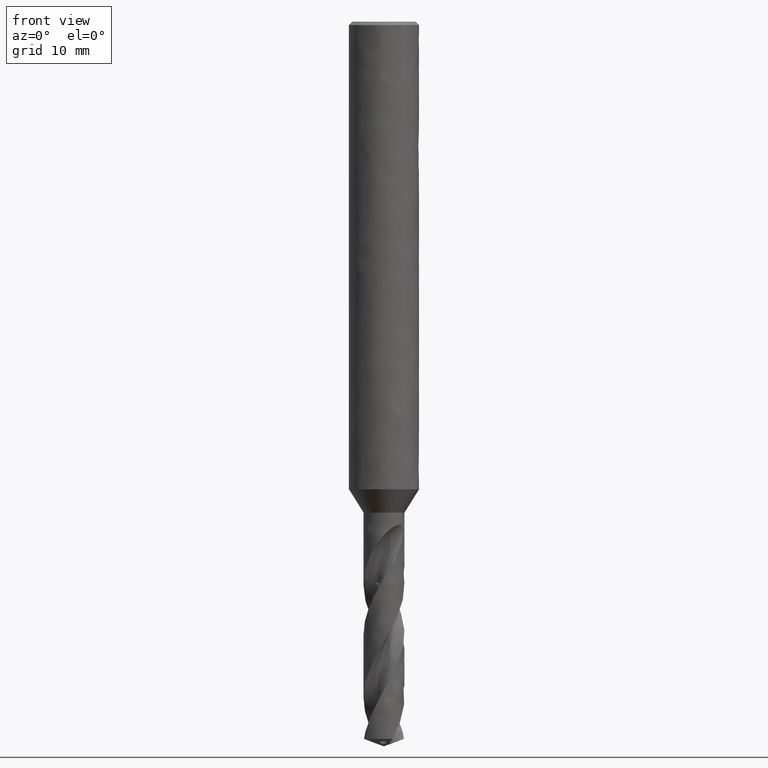
[diagram: clean part render]
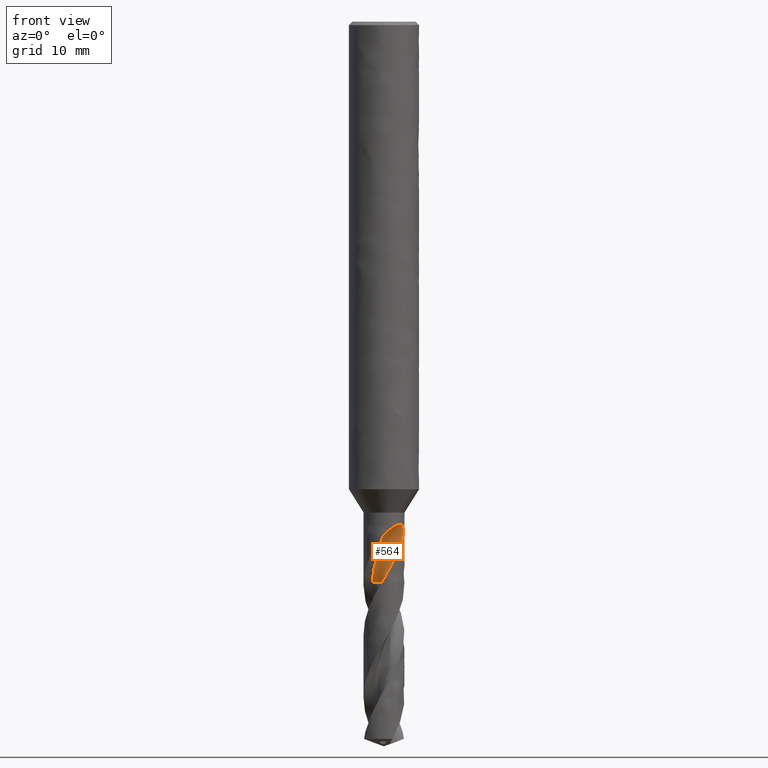
[diagram: same view with one face highlighted and labeled with its STEP entity id]
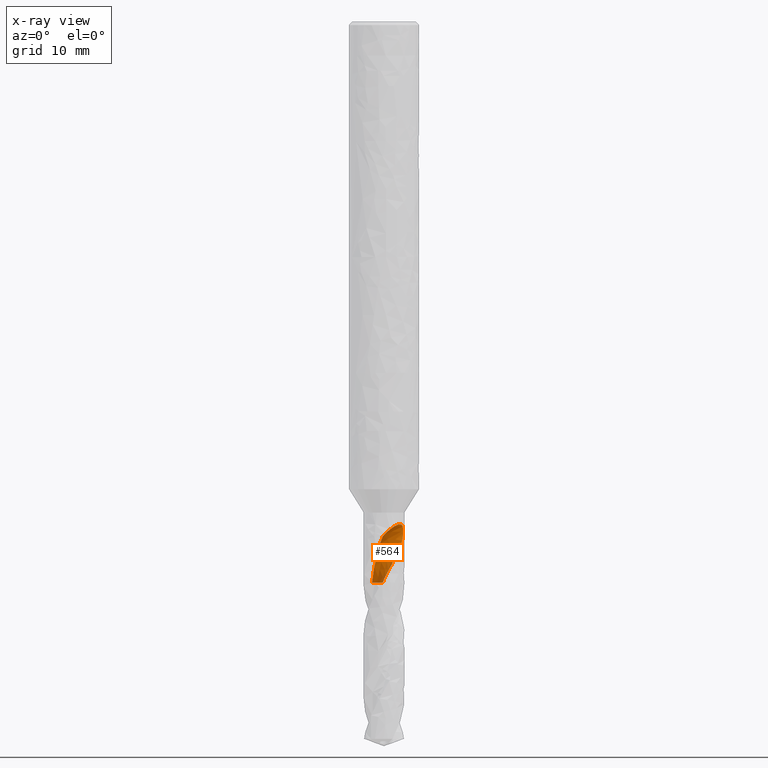
[diagram: x-ray of the same camera — body ghosted, the highlighted face saturated]
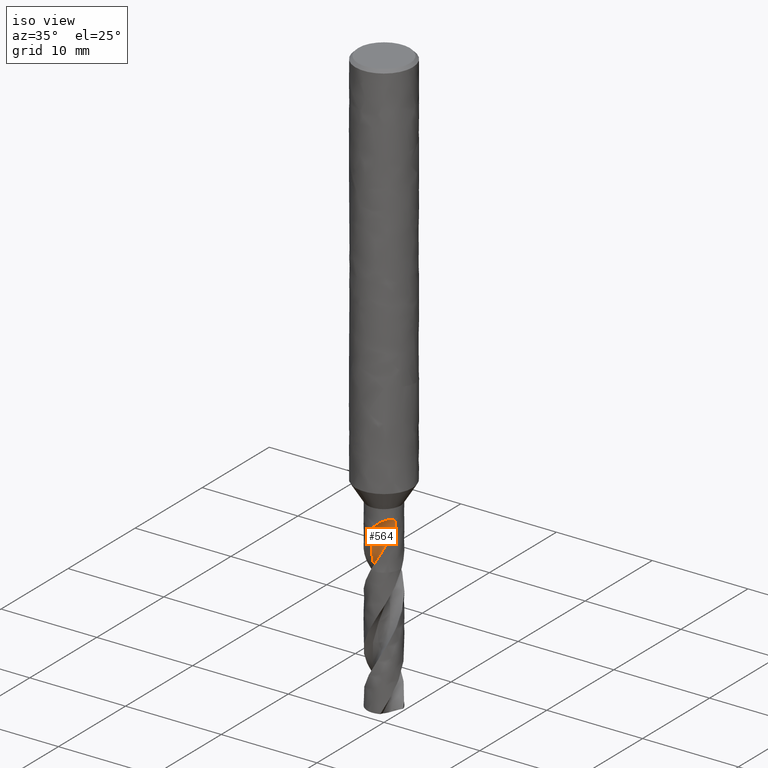
[diagram: same view with one face highlighted and labeled with its STEP entity id]
A machine part, front view. The second image highlights one B-rep face of the part: STEP entity #564.
The next image is the same camera in x-ray: the body ghosted, the highlighted face saturated — about 0% of this face is hidden behind the body in this view.
A second angle (iso view) of the same face is appended — the face is thin or edge-on in the first view.
In plain terms, the highlighted face is a freeform B-spline surface patch.
Its self-contained STEP definition (entity closure, byte-faithful):
#422 = VERTEX_POINT('', #423);
#423 = CARTESIAN_POINT('', (-1.02463457413671, -0.229073927683656, -48.));
#429 = EDGE_CURVE('', #422, #430, #432, .T.);
#430 = VERTEX_POINT('', #431);
#431 = CARTESIAN_POINT('', (-0.0982316815535359, -1.74724083535704, -44.0364410090639));
#432 = (
   BOUNDED_CURVE ()
   B_SPLINE_CURVE (3, (#433, #434, #435, #436, #437, #438, #439, #440, #441, #442, #443, #444, #445, #446, #447, #448), .UNSPECIFIED., .F., .U.)
   B_SPLINE_CURVE_WITH_KNOTS ((4, 1, 1, 1, 1, 1, 1, 1, 1, 1, 1, 1, 1, 4), (14.05, 14.206779661017, 14.5296610169492, 14.8525423728814, 15.1754237288136, 15.4983050847458, 15.821186440678, 16.1440677966102, 16.4669491525424, 16.7898305084746, 17.1127118644068, 17.435593220339, 17.7584745762712, 18.0135589909361), .UNSPECIFIED.)
   CURVE ()
   GEOMETRIC_REPRESENTATION_ITEM ()
   RATIONAL_B_SPLINE_CURVE ((1., 1., 1., 1., 1., 1., 1., 1., 1., 1., 1., 1., 1., 1., 1., 1.))
   REPRESENTATION_ITEM ('')
);
#433 = CARTESIAN_POINT('', (-1.02463457413671, -0.229073927683656, -48.));
#434 = CARTESIAN_POINT('', (-1.02118011137173, -0.246667530193269, -47.9477401129944));
#435 = CARTESIAN_POINT('', (-1.00922730980289, -0.300254623871898, -47.7878531073446));
#436 = CARTESIAN_POINT('', (-0.982076956709477, -0.388266202687779, -47.5203389830508));
#437 = CARTESIAN_POINT('', (-0.939420484391707, -0.491482865861432, -47.1974576271186));
#438 = CARTESIAN_POINT('', (-0.880946828227628, -0.586976967924989, -46.8745762711864));
#439 = CARTESIAN_POINT('', (-0.807347412045549, -0.670961511618419, -46.5516949152542));
#440 = CARTESIAN_POINT('', (-0.720580019576598, -0.740983774738041, -46.228813559322));
#441 = CARTESIAN_POINT('', (-0.625835455340799, -0.795190504168269, -45.9059322033898));
#442 = CARTESIAN_POINT('', (-0.555132814584524, -0.879462890302774, -45.5830508474576));
#443 = CARTESIAN_POINT('', (-0.490520928842752, -0.993328379503738, -45.2601694915254));
#444 = CARTESIAN_POINT('', (-0.422478962493623, -1.14241824249025, -44.9372881355932));
#445 = CARTESIAN_POINT('', (-0.338106807925175, -1.32753285038266, -44.614406779661));
#446 = CARTESIAN_POINT('', (-0.232797666395472, -1.53200409726768, -44.3141244041512));
#447 = CARTESIAN_POINT('', (-0.143103135513535, -1.67951902631852, -44.1214691472855));
#448 = CARTESIAN_POINT('', (-0.0982316815535369, -1.74724083535704, -44.0364410090639));
#564 = ADVANCED_FACE('', (#565), #840, .T.);
#565 = FACE_OUTER_BOUND('', #566, .T.);
#566 = EDGE_LOOP('', (#567, #624, #663, #674, #779, #787, #839));
#567 = ORIENTED_EDGE('', *, *, #568, .T.);
#568 = EDGE_CURVE('', #422, #569, #571, .T.);
#569 = VERTEX_POINT('', #570);
#570 = CARTESIAN_POINT('', (-0.209315928972216, -1.73743685676138, -48.));
#571 = B_SPLINE_CURVE_WITH_KNOTS('', 3, (#572, #573, #574, #575, #576, #577, #578, #579, #580, #581, #582, #583, #584, #585, #586, #587, #588, #589, #590, #591, #592, #593, #594, #595, #596, #597, #598, #599, #600, #601, #602, #603, #604, #605, #606, #607, #608, #609, #610, #611, #612, #613, #614, #615, #616, #617, #618, #619, #620, #621, #622, #623), .UNSPECIFIED., .F., .U., (4, 3, 3, 3, 3, 3, 3, 3, 3, 3, 3, 3, 3, 3, 3, 3, 3, 4), (0., 0.13238223961538, 0.264489129459112, 0.396329541998018, 0.527909895141712, 0.659234382537287, 0.790305122709238, 0.921122238344768, 1.00833954413342, 1.04734196641181, 1.17964447026306, 1.31167442705309, 1.44343997904716, 1.57494688894051, 1.70619874545669, 1.83719709162444, 1.96794148542349, 2.00282853897093), .UNSPECIFIED.);
#572 = CARTESIAN_POINT('', (-1.02463457413671, -0.229073927683655, -48.));
#573 = CARTESIAN_POINT('', (-0.980840436519577, -0.234487069705403, -48.));
#574 = CARTESIAN_POINT('', (-0.937301769085219, -0.24267663320288, -48.));
#575 = CARTESIAN_POINT('', (-0.894533881379576, -0.253545689158824, -48.));
#576 = CARTESIAN_POINT('', (-0.851854949172402, -0.264392137912441, -48.));
#577 = CARTESIAN_POINT('', (-0.809775730986182, -0.277949557964906, -48.));
#578 = CARTESIAN_POINT('', (-0.76879219925814, -0.29405815293796, -48.));
#579 = CARTESIAN_POINT('', (-0.727891336807151, -0.310134254715708, -48.));
#580 = CARTESIAN_POINT('', (-0.687921521844684, -0.328814178372795, -48.));
#581 = CARTESIAN_POINT('', (-0.649351970942264, -0.349878635184896, -48.));
#582 = CARTESIAN_POINT('', (-0.61085849970228, -0.37090154168785, -48.));
#583 = CARTESIAN_POINT('', (-0.573609571840415, -0.394381566705054, -48.));
#584 = CARTESIAN_POINT('', (-0.538040744348666, -0.420044154976654, -48.));
#585 = CARTESIAN_POINT('', (-0.502541082537343, -0.445656840833571, -48.));
#586 = CARTESIAN_POINT('', (-0.468577006149005, -0.473543115206731, -48.));
#587 = CARTESIAN_POINT('', (-0.43654412338344, -0.5033781631747, -48.));
#588 = CARTESIAN_POINT('', (-0.404573135053769, -0.533155563397463, -48.));
#589 = CARTESIAN_POINT('', (-0.374402086367705, -0.564989461779883, -48.));
#590 = CARTESIAN_POINT('', (-0.346381052114439, -0.598510489481608, -48.));
#591 = CARTESIAN_POINT('', (-0.31841423912988, -0.631966653315929, -48.));
#592 = CARTESIAN_POINT('', (-0.292481245161039, -0.667232418184141, -48.));
#593 = CARTESIAN_POINT('', (-0.268881810821114, -0.703900172763031, -48.));
#594 = CARTESIAN_POINT('', (-0.253147791069455, -0.72834699494034, -48.));
#595 = CARTESIAN_POINT('', (-0.238415169574571, -0.753467970903061, -48.));
#596 = CARTESIAN_POINT('', (-0.224759759827934, -0.779133829095726, -48.));
#597 = CARTESIAN_POINT('', (-0.218653241717715, -0.790611260441673, -48.));
#598 = CARTESIAN_POINT('', (-0.212758457184175, -0.802203872072275, -48.));
#599 = CARTESIAN_POINT('', (-0.207081478613279, -0.813899722107092, -48.));
#600 = CARTESIAN_POINT('', (-0.187824252129282, -0.85357393088392, -48.));
#601 = CARTESIAN_POINT('', (-0.171033120335392, -0.894541725115934, -48.));
#602 = CARTESIAN_POINT('', (-0.156906578998959, -0.936318805480571, -48.));
#603 = CARTESIAN_POINT('', (-0.142809138754452, -0.97800982382712, -48.));
#604 = CARTESIAN_POINT('', (-0.131309900642762, -1.02067055713143, -48.));
#605 = CARTESIAN_POINT('', (-0.122544244648893, -1.06379876260322, -48.));
#606 = CARTESIAN_POINT('', (-0.113796142864241, -1.10684059900661, -48.));
#607 = CARTESIAN_POINT('', (-0.107736416082395, -1.1505164296454, -48.));
#608 = CARTESIAN_POINT('', (-0.10443612056557, -1.19431411240731, -48.));
#609 = CARTESIAN_POINT('', (-0.101142303186259, -1.23802582486435, -48.));
#610 = CARTESIAN_POINT('', (-0.100584216260085, -1.2820292583047, -48.));
#611 = CARTESIAN_POINT('', (-0.102768378314935, -1.32581044690178, -48.));
#612 = CARTESIAN_POINT('', (-0.104948304258475, -1.36950672330667, -48.));
#613 = CARTESIAN_POINT('', (-0.109868273691704, -1.41315124799675, -48.));
#614 = CARTESIAN_POINT('', (-0.117471042774582, -1.45623621696557, -48.));
#615 = CARTESIAN_POINT('', (-0.125059127260301, -1.49923796817438, -48.));
#616 = CARTESIAN_POINT('', (-0.135348961229887, -1.54184862088008, -48.));
#617 = CARTESIAN_POINT('', (-0.14822128317172, -1.58357430794468, -48.));
#618 = CARTESIAN_POINT('', (-0.161068650930974, -1.62521910591888, -48.));
#619 = CARTESIAN_POINT('', (-0.176537954614612, -1.66614279993521, -48.));
#620 = CARTESIAN_POINT('', (-0.19445059395523, -1.70587290701418, -48.));
#621 = CARTESIAN_POINT('', (-0.199230295705293, -1.71647425161363, -48.));
#622 = CARTESIAN_POINT('', (-0.204186802137414, -1.72699844392431, -48.));
#623 = CARTESIAN_POINT('', (-0.209315961483917, -1.73743684078596, -48.));
#624 = ORIENTED_EDGE('', *, *, #625, .F.);
#625 = EDGE_CURVE('', #626, #569, #628, .T.);
#626 = VERTEX_POINT('', #627);
#627 = CARTESIAN_POINT('', (0.670503920200048, -1.61645429659992, -46.4198884757351));
#628 = B_SPLINE_CURVE_WITH_KNOTS('', 3, (#629, #630, #631, #632, #633, #634, #635, #636, #637, #638, #639, #640, #641, #642, #643, #644, #645, #646, #647, #648, #649, #650, #651, #652, #653, #654, #655, #656, #657, #658, #659, #660, #661, #662), .UNSPECIFIED., .F., .U., (4, 3, 3, 3, 3, 3, 3, 3, 3, 3, 3, 4), (0., 0.196912370684653, 0.492059195325573, 0.787148468239618, 0.918409681121345, 1.11521293322306, 1.24646837218767, 1.37771199716514, 1.41662988129931, 1.61395339891345, 1.81125986598311, 1.81740518934498), .UNSPECIFIED.);
#629 = CARTESIAN_POINT('', (0.670503920200047, -1.61645429659992, -46.4198884757351));
#630 = CARTESIAN_POINT('', (0.641567049603881, -1.62845728685697, -46.477567427638));
#631 = CARTESIAN_POINT('', (0.61213232277094, -1.63975511168635, -46.5351500155752));
#632 = CARTESIAN_POINT('', (0.582269470543588, -1.65029156929112, -46.5926432227011));
#633 = CARTESIAN_POINT('', (0.537508818996007, -1.66608439121591, -46.6788182936864));
#634 = CARTESIAN_POINT('', (0.491763708956138, -1.68017495230515, -46.764817784929));
#635 = CARTESIAN_POINT('', (0.445187825674481, -1.69242660102919, -46.8506062236063));
#636 = CARTESIAN_POINT('', (0.398621024389613, -1.70467586076076, -46.9363779340916));
#637 = CARTESIAN_POINT('', (0.351192379158234, -1.71509257486522, -47.0219681604022));
#638 = CARTESIAN_POINT('', (0.303158585739479, -1.72354137516116, -47.1073887090354));
#639 = CARTESIAN_POINT('', (0.281792258454202, -1.72729955912796, -47.1453853624139));
#640 = CARTESIAN_POINT('', (0.260303767323908, -1.73066945308907, -47.1833539374585));
#641 = CARTESIAN_POINT('', (0.238717380773135, -1.73364183501576, -47.2212957668518));
#642 = CARTESIAN_POINT('', (0.206352366150387, -1.73809840232013, -47.2781829100633));
#643 = CARTESIAN_POINT('', (0.173757758337975, -1.74166164744573, -47.3350169121262));
#644 = CARTESIAN_POINT('', (0.141046044290308, -1.74430674291825, -47.3918187559381));
#645 = CARTESIAN_POINT('', (0.119229380486439, -1.74607085587696, -47.4297020269913));
#646 = CARTESIAN_POINT('', (0.0973593200607882, -1.74742687072466, -47.4675757770086));
#647 = CARTESIAN_POINT('', (0.0754820796046046, -1.74837137235158, -47.5054534142957));
#648 = CARTESIAN_POINT('', (0.0536068082663439, -1.74931578896617, -47.5433276423076));
#649 = CARTESIAN_POINT('', (0.0317271915754814, -1.74984903786735, -47.5812118337766));
#650 = CARTESIAN_POINT('', (0.0098581533369631, -1.74997223315479, -47.6191012327663));
#651 = CARTESIAN_POINT('', (0.00337329209941045, -1.7500087644524, -47.6303366374578));
#652 = CARTESIAN_POINT('', (-0.0031108152520683, -1.75000924399543, -47.6415726522982));
#653 = CARTESIAN_POINT('', (-0.00959386837336357, -1.74997370199944, -47.6528091035787));
#654 = CARTESIAN_POINT('', (-0.0424645877157391, -1.7497934950887, -47.7097807540551));
#655 = CARTESIAN_POINT('', (-0.0753111378252613, -1.74868738550184, -47.7667709256039));
#656 = CARTESIAN_POINT('', (-0.108101702283763, -1.74665795791944, -47.8237529045868));
#657 = CARTESIAN_POINT('', (-0.140889433339615, -1.74462870569803, -47.8807299598091));
#658 = CARTESIAN_POINT('', (-0.173632282435535, -1.74167501371979, -47.9377074348598));
#659 = CARTESIAN_POINT('', (-0.206266905327609, -1.73780147421003, -47.9946768571364));
#660 = CARTESIAN_POINT('', (-0.207283345961527, -1.73768082863162, -47.9964512314224));
#661 = CARTESIAN_POINT('', (-0.208299687821011, -1.73755928937422, -47.9982256124543));
#662 = CARTESIAN_POINT('', (-0.209315928972216, -1.73743685676138, -48.));
#663 = ORIENTED_EDGE('', *, *, #664, .T.);
#664 = EDGE_CURVE('', #626, #665, #667, .T.);
#665 = VERTEX_POINT('', #666);
#666 = CARTESIAN_POINT('', (1.06988006260758, -1.38486701586643, -45.6098181163307));
#667 = (
   BOUNDED_CURVE ()
   B_SPLINE_CURVE (3, (#668, #669, #670, #671, #672, #673), .UNSPECIFIED., .F., .U.)
   B_SPLINE_CURVE_WITH_KNOTS ((4, 1, 1, 4), (15.6301115242649, 15.821186440678, 16.1440677966102, 16.4401818836693), .UNSPECIFIED.)
   CURVE ()
   GEOMETRIC_REPRESENTATION_ITEM ()
   RATIONAL_B_SPLINE_CURVE ((1., 1., 1., 1., 1., 1.))
   REPRESENTATION_ITEM ('')
);
#668 = CARTESIAN_POINT('', (0.670503920200048, -1.61645429659992, -46.4198884757351));
#669 = CARTESIAN_POINT('', (0.70221884694792, -1.59780081020011, -46.3561968369307));
#670 = CARTESIAN_POINT('', (0.784847952209712, -1.54357346306909, -46.1848780794823));
#671 = CARTESIAN_POINT('', (0.90141755642172, -1.44374537222821, -45.9148546263475));
#672 = CARTESIAN_POINT('', (1.01132593709417, -1.40119286587628, -45.7085228120171));
#673 = CARTESIAN_POINT('', (1.06988006260758, -1.38486701586643, -45.6098181163307));
#674 = ORIENTED_EDGE('', *, *, #675, .F.);
#675 = EDGE_CURVE('', #676, #665, #678, .T.);
#676 = VERTEX_POINT('', #677);
#677 = CARTESIAN_POINT('', (1.36812524291428, -1.09120727623158, -43.));
#678 = B_SPLINE_CURVE_WITH_KNOTS('', 3, (#679, #680, #681, #682, #683, #684, #685, #686, #687, #688, #689, #690, #691, #692, #693, #694, #695, #696, #697, #698, #699, #700, #701, #702, #703, #704, #705, #706, #707, #708, #709, #710, #711, #712, #713, #714, #715, #716, #717, #718, #719, #720, #721, #722, #723, #724, #725, #726, #727, #728, #729, #730, #731, #732, #733, #734, #735, #736, #737, #738, #739, #740, #741, #742, #743, #744, #745, #746, #747, #748, #749, #750, #751, #752, #753, #754, #755, #756, #757, #758, #759, #760, #761, #762, #763, #764, #765, #766, #767, #768, #769, #770, #771, #772, #773, #774, #775, #776, #777, #778), .UNSPECIFIED., .F., .U., (4, 3, 3, 3, 3, 3, 3, 3, 3, 3, 3, 3, 3, 3, 3, 3, 3, 3, 3, 3, 3, 3, 3, 3, 3, 3, 3, 3, 3, 3, 3, 3, 3, 4), (0., 0.0876064604284162, 0.174954474055979, 0.233061554713989, 0.291071857956427, 0.348998773800866, 0.406869704771239, 0.464722692013906, 0.522597972911667, 0.58052854123835, 0.6385346334677, 0.696623652282654, 0.754793499270582, 0.793650941808806, 0.881083362469084, 0.968658215114641, 1.05634098697163, 1.18816145221221, 1.32013795023672, 1.45219513306295, 1.58428299878999, 1.71636487271589, 1.84841881080709, 1.98042811375123, 2.11237955534745, 2.2442673283256, 2.37608666631463, 2.50783673724395, 2.63952265806685, 2.77114618353116, 2.90270633107335, 3.03420591419199, 3.16565618698797, 3.18550606596538), .UNSPECIFIED.);
#679 = CARTESIAN_POINT('', (1.36812524291503, -1.09120727623063, -43.));
#680 = CARTESIAN_POINT('', (1.3863341507876, -1.06837745549077, -43.0000269577031));
#681 = CARTESIAN_POINT('', (1.404010280117, -1.0450337117202, -43.0016506137325));
#682 = CARTESIAN_POINT('', (1.42093114160208, -1.02149629995678, -43.0051777176047));
#683 = CARTESIAN_POINT('', (1.43780208505034, -0.998028325638281, -43.0086944162089));
#684 = CARTESIAN_POINT('', (1.45400448005079, -0.974248773254522, -43.0141286427403));
#685 = CARTESIAN_POINT('', (1.46927015733305, -0.950655145029208, -43.021747141595));
#686 = CARTESIAN_POINT('', (1.4794254419732, -0.934959804043561, -43.0268152445668));
#687 = CARTESIAN_POINT('', (1.48920161623475, -0.919295187944383, -43.0328663552207));
#688 = CARTESIAN_POINT('', (1.49851413549821, -0.903855843435251, -43.0399418642912));
#689 = CARTESIAN_POINT('', (1.50781114474917, -0.888442213173726, -43.0470055890925));
#690 = CARTESIAN_POINT('', (1.5166773828833, -0.873201001334438, -43.0551163445982));
#691 = CARTESIAN_POINT('', (1.52503401379854, -0.858353806281251, -43.0642617317261));
#692 = CARTESIAN_POINT('', (1.53337863240443, -0.84352795345339, -43.0733939727404));
#693 = CARTESIAN_POINT('', (1.54124679019073, -0.829039208698176, -43.0835942549671));
#694 = CARTESIAN_POINT('', (1.54857711546831, -0.815112824980589, -43.094781683875));
#695 = CARTESIAN_POINT('', (1.55590035617508, -0.801199900754626, -43.1059583004206));
#696 = CARTESIAN_POINT('', (1.56271666849305, -0.787792721946847, -43.1181658146862));
#697 = CARTESIAN_POINT('', (1.56899220606779, -0.775089322141983, -43.1312561673905));
#698 = CARTESIAN_POINT('', (1.57526579782041, -0.762389861211839, -43.1443424612396));
#699 = CARTESIAN_POINT('', (1.58102494242089, -0.750342700622784, -43.1583630327344));
#700 = CARTESIAN_POINT('', (1.58626665650486, -0.73909275091892, -43.173122721526));
#701 = CARTESIAN_POINT('', (1.59151039048393, -0.727838466045681, -43.1878880979652));
#702 = CARTESIAN_POINT('', (1.59625704608792, -0.717338885973317, -43.2034474152414));
#703 = CARTESIAN_POINT('', (1.60052967737482, -0.707675597885403, -43.2195885893208));
#704 = CARTESIAN_POINT('', (1.60480639024533, -0.698003078596447, -43.2357451828331));
#705 = CARTESIAN_POINT('', (1.60862336037621, -0.689134999639388, -43.2525371820438));
#706 = CARTESIAN_POINT('', (1.61201994979088, -0.681095941462145, -43.2697627485153));
#707 = CARTESIAN_POINT('', (1.61542096732866, -0.673046402789632, -43.2870107719046));
#708 = CARTESIAN_POINT('', (1.61841076246628, -0.665804115057992, -43.3047410077672));
#709 = CARTESIAN_POINT('', (1.62103510471231, -0.659352098116285, -43.3227782084682));
#710 = CARTESIAN_POINT('', (1.6236631987667, -0.652890857251458, -43.340841195486));
#711 = CARTESIAN_POINT('', (1.62593124378833, -0.64720623333377, -43.3592529956072));
#712 = CARTESIAN_POINT('', (1.62788424011676, -0.642256102173793, -43.3778704073155));
#713 = CARTESIAN_POINT('', (1.62983995394892, -0.637299083136111, -43.3965137242879));
#714 = CARTESIAN_POINT('', (1.6314835398811, -0.633068717165675, -43.4153973776843));
#715 = CARTESIAN_POINT('', (1.63285527563452, -0.629510642351603, -43.4344086524103));
#716 = CARTESIAN_POINT('', (1.63377159475819, -0.627133849308583, -43.4471081789433));
#717 = CARTESIAN_POINT('', (1.63456730896523, -0.625054731716784, -43.4598757454494));
#718 = CARTESIAN_POINT('', (1.63525284940557, -0.623256061752319, -43.4726843980222));
#719 = CARTESIAN_POINT('', (1.63679537141021, -0.619208907367227, -43.5015049128757));
#720 = CARTESIAN_POINT('', (1.63778463798036, -0.616574217410797, -43.5305822517412));
#721 = CARTESIAN_POINT('', (1.63831611610973, -0.615158762999557, -43.5596871470163));
#722 = CARTESIAN_POINT('', (1.63884846004476, -0.613741002739063, -43.5888394556878));
#723 = CARTESIAN_POINT('', (1.63892230906078, -0.613542565414393, -43.6180804678249));
#724 = CARTESIAN_POINT('', (1.63860542044066, -0.614387724570164, -43.6472581274758));
#725 = CARTESIAN_POINT('', (1.63828814131608, -0.615233925222516, -43.6764717429967));
#726 = CARTESIAN_POINT('', (1.63757845114079, -0.617126972709268, -43.7056665546259));
#727 = CARTESIAN_POINT('', (1.63652260656598, -0.619914315206936, -43.7347417668767));
#728 = CARTESIAN_POINT('', (1.63493527167539, -0.62410474825377, -43.7784528394704));
#729 = CARTESIAN_POINT('', (1.63256408533588, -0.630321414343345, -43.8219770940221));
#730 = CARTESIAN_POINT('', (1.62950060100851, -0.638144020823593, -43.8651066560429));
#731 = CARTESIAN_POINT('', (1.62643349050681, -0.645975886739122, -43.9082872695117));
#732 = CARTESIAN_POINT('', (1.62266547045788, -0.655432542192796, -43.9511493046943));
#733 = CARTESIAN_POINT('', (1.6182416848958, -0.666178541582971, -43.993578826121));
#734 = CARTESIAN_POINT('', (1.61381519481991, -0.676931110618827, -44.0360342871473));
#735 = CARTESIAN_POINT('', (1.60872598957346, -0.688988315905038, -44.0781096464362));
#736 = CARTESIAN_POINT('', (1.6029929522305, -0.702078054848129, -44.1197445926166));
#737 = CARTESIAN_POINT('', (1.59725858284174, -0.715170835134015, -44.1613892124922));
#738 = CARTESIAN_POINT('', (1.59087429730304, -0.729309263479572, -44.2026305734875));
#739 = CARTESIAN_POINT('', (1.58384688407942, -0.744264098147904, -44.2434416827092));
#740 = CARTESIAN_POINT('', (1.57681978963498, -0.759218254431473, -44.2842509406477));
#741 = CARTESIAN_POINT('', (1.56914497236116, -0.774998383029103, -44.3246577909049));
#742 = CARTESIAN_POINT('', (1.56082539904291, -0.791406389728155, -44.3646573458516));
#743 = CARTESIAN_POINT('', (1.55250758534706, -0.807810926069397, -44.4046484407356));
#744 = CARTESIAN_POINT('', (1.5435405496855, -0.824852348845201, -44.4442528028221));
#745 = CARTESIAN_POINT('', (1.53392774909446, -0.842357204847213, -44.483479790833));
#746 = CARTESIAN_POINT('', (1.5243181976967, -0.859856144086474, -44.5226935198499));
#747 = CARTESIAN_POINT('', (1.51405916942343, -0.877825626761955, -44.5615459288459));
#748 = CARTESIAN_POINT('', (1.50316056623925, -0.896107310595856, -44.6000592172125));
#749 = CARTESIAN_POINT('', (1.49226674005075, -0.914380981336397, -44.6385556247174));
#750 = CARTESIAN_POINT('', (1.48073072154359, -0.932971906698418, -44.6767262239139));
#751 = CARTESIAN_POINT('', (1.46856927707271, -0.951737505007602, -44.7146013802915));
#752 = CARTESIAN_POINT('', (1.4564137006875, -0.970494048624415, -44.7524582613185));
#753 = CARTESIAN_POINT('', (1.44362988242142, -0.989430330083765, -44.7900299071547));
#754 = CARTESIAN_POINT('', (1.4302441027383, -1.00841549302967, -44.8273540802465));
#755 = CARTESIAN_POINT('', (1.41686526877627, -1.02739080480143, -44.864658886271));
#756 = CARTESIAN_POINT('', (1.40288197767705, -1.04641926745805, -44.9017246477944));
#757 = CARTESIAN_POINT('', (1.38833301293586, -1.06537854549094, -44.9385970983363));
#758 = CARTESIAN_POINT('', (1.37379169323389, -1.08432786099888, -44.9754501735251));
#759 = CARTESIAN_POINT('', (1.35868264556515, -1.1032116088272, -45.0121172299971));
#760 = CARTESIAN_POINT('', (1.34305265502258, -1.12192226372277, -45.0486451710393));
#761 = CARTESIAN_POINT('', (1.32743027484066, -1.14062380825891, -45.0851553263507));
#762 = CARTESIAN_POINT('', (1.31128472585614, -1.15915559594471, -45.1215325152537));
#763 = CARTESIAN_POINT('', (1.29467670035659, -1.17741761561223, -45.1578294861757));
#764 = CARTESIAN_POINT('', (1.27807654406357, -1.19567098237851, -45.1941092588847));
#765 = CARTESIAN_POINT('', (1.26101170614617, -1.21365760378228, -45.2303143985887));
#766 = CARTESIAN_POINT('', (1.24355892790831, -1.23128436716311, -45.2665037649768));
#767 = CARTESIAN_POINT('', (1.22611455334156, -1.24890264309739, -45.3026757058565));
#768 = CARTESIAN_POINT('', (1.20828064233756, -1.26616346133203, -45.3388377486217));
#769 = CARTESIAN_POINT('', (1.19014354058683, -1.28298805637509, -45.3750468317314));
#770 = CARTESIAN_POINT('', (1.17201478834873, -1.29980490612506, -45.4112392457944));
#771 = CARTESIAN_POINT('', (1.15358053186681, -1.31618842578887, -45.4474840963224));
#772 = CARTESIAN_POINT('', (1.13493513037531, -1.33207441602936, -45.4838342441382));
#773 = CARTESIAN_POINT('', (1.1162967206228, -1.34795444926768, -45.5201707612073));
#774 = CARTESIAN_POINT('', (1.09744458048193, -1.3633397724085, -45.5566183766007));
#775 = CARTESIAN_POINT('', (1.07847924418622, -1.37818087341956, -45.5932239224432));
#776 = CARTESIAN_POINT('', (1.07561535031801, -1.38042197990565, -45.598751607091));
#777 = CARTESIAN_POINT('', (1.07274883844845, -1.38265074091651, -45.6042829564905));
#778 = CARTESIAN_POINT('', (1.06988006260758, -1.38486701586643, -45.6098181163307));
#779 = ORIENTED_EDGE('', *, *, #780, .T.);
#780 = EDGE_CURVE('', #676, #781, #783, .T.);
#781 = VERTEX_POINT('', #782);
#782 = CARTESIAN_POINT('', (1.36720002635966, -1.09236627919491, -43.));
#783 = LINE('', #784, #785);
#784 = CARTESIAN_POINT('', (1.36812524291428, -1.09120727623158, -43.));
#785 = VECTOR('', #786, 0.0014830082744049);
#786 = DIRECTION('', (-0.000925216554617414, -0.00115900296333327, 0.));
#787 = ORIENTED_EDGE('', *, *, #788, .T.);
#788 = EDGE_CURVE('', #781, #430, #789, .T.);
#789 = B_SPLINE_CURVE_WITH_KNOTS('', 3, (#790, #791, #792, #793, #794, #795, #796, #797, #798, #799, #800, #801, #802, #803, #804, #805, #806, #807, #808, #809, #810, #811, #812, #813, #814, #815, #816, #817, #818, #819, #820, #821, #822, #823, #824, #825, #826, #827, #828, #829, #830, #831, #832, #833, #834, #835, #836, #837, #838), .UNSPECIFIED., .F., .U., (4, 3, 3, 3, 3, 3, 3, 3, 3, 3, 3, 3, 3, 3, 3, 3, 4), (0., 0.0877886895911816, 0.175300693010441, 0.262613165509976, 0.349783454359497, 0.436852692636223, 0.566934991375601, 0.696854749284846, 0.826680091037021, 0.956454580274272, 1.08620733632173, 1.2796571814525, 1.47316306476609, 1.66678634796347, 1.86058634812987, 1.88649870792638, 2.01355357009072), .UNSPECIFIED.);
#790 = CARTESIAN_POINT('', (1.36720002635868, -1.09236627919614, -43.));
#791 = CARTESIAN_POINT('', (1.348933861896, -1.1152281168512, -43.0000269852739));
#792 = CARTESIAN_POINT('', (1.33006821204651, -1.13765822958676, -43.0016488214403));
#793 = CARTESIAN_POINT('', (1.31077786483607, -1.15946599305706, -43.004584987354));
#794 = CARTESIAN_POINT('', (1.29154831557522, -1.18120502436356, -43.0075118992679));
#795 = CARTESIAN_POINT('', (1.27184451708894, -1.20238684915239, -43.0117518775306));
#796 = CARTESIAN_POINT('', (1.25180205315617, -1.22290294779022, -43.0170732679936));
#797 = CARTESIAN_POINT('', (1.23180528685464, -1.24337226889045, -43.0223825254702));
#798 = CARTESIAN_POINT('', (1.21143012706524, -1.26322240000761, -43.0287791878967));
#799 = CARTESIAN_POINT('', (1.1907841901799, -1.28239347020234, -43.036077635779));
#800 = CARTESIAN_POINT('', (1.1701718740887, -1.30153332134375, -43.0433641985328));
#801 = CARTESIAN_POINT('', (1.14925634618401, -1.3200279752899, -43.0515616176578));
#802 = CARTESIAN_POINT('', (1.12812553244469, -1.33784632265682, -43.0605221243928));
#803 = CARTESIAN_POINT('', (1.10701921421709, -1.35564401442845, -43.0694722438234));
#804 = CARTESIAN_POINT('', (1.08567058747276, -1.37279058915999, -43.0791956189171));
#805 = CARTESIAN_POINT('', (1.06415354893067, -1.38927219230007, -43.0895741038574));
#806 = CARTESIAN_POINT('', (1.03200688162295, -1.41389586956894, -43.1050796624815));
#807 = CARTESIAN_POINT('', (0.999422911294785, -1.4370815671387, -43.1220749485011));
#808 = CARTESIAN_POINT('', (0.966607873839315, -1.45882460159946, -43.1402565276051));
#809 = CARTESIAN_POINT('', (0.933833839529395, -1.48054046763758, -43.1584153884069));
#810 = CARTESIAN_POINT('', (0.90076643296362, -1.50085983860467, -43.1777936421147));
#811 = CARTESIAN_POINT('', (0.867577818090698, -1.51980549069839, -43.1981661357744));
#812 = CARTESIAN_POINT('', (0.834413322270376, -1.53873737448087, -43.218523824199));
#813 = CARTESIAN_POINT('', (0.801075985750746, -1.5563275697995, -43.2399069142451));
#814 = CARTESIAN_POINT('', (0.767714421174675, -1.57261392831185, -43.262144180714));
#815 = CARTESIAN_POINT('', (0.73436592430509, -1.58889390746653, -43.2843727368578));
#816 = CARTESIAN_POINT('', (0.70094949482811, -1.60389266613633, -43.3074844654398));
#817 = CARTESIAN_POINT('', (0.667596585717259, -1.61765719444468, -43.3313463573864));
#818 = CARTESIAN_POINT('', (0.634249262181108, -1.63141941762275, -43.3552042532083));
#819 = CARTESIAN_POINT('', (0.600927887413, -1.64396346402634, -43.3798392622207));
#820 = CARTESIAN_POINT('', (0.56775088485083, -1.65534254242169, -43.405146277903));
#821 = CARTESIAN_POINT('', (0.518286918126245, -1.67230773854057, -43.4428767925647));
#822 = CARTESIAN_POINT('', (0.469057327961862, -1.68671168985973, -43.482166075511));
#823 = CARTESIAN_POINT('', (0.420413963471636, -1.69875015800384, -43.5227492246734));
#824 = CARTESIAN_POINT('', (0.371756508064197, -1.71079211342848, -43.5633441298852));
#825 = CARTESIAN_POINT('', (0.323595456141573, -1.72048980445196, -43.6053096794683));
#826 = CARTESIAN_POINT('', (0.276246806345847, -1.72805894054101, -43.6484526572018));
#827 = CARTESIAN_POINT('', (0.228869430157475, -1.73563266881962, -43.6916218097497));
#828 = CARTESIAN_POINT('', (0.182230604853079, -1.74108788814849, -43.736039035593));
#829 = CARTESIAN_POINT('', (0.136598784823938, -1.74466064665442, -43.7815420603685));
#830 = CARTESIAN_POINT('', (0.0909253173400409, -1.74823666596165, -43.8270866150494));
#831 = CARTESIAN_POINT('', (0.0461973876547094, -1.74993198861725, -43.8737825259433));
#832 = CARTESIAN_POINT('', (0.00265247915911645, -1.74999798981436, -43.9215004114278));
#833 = CARTESIAN_POINT('', (-0.00316976715293382, -1.75000681461707, -43.9278806127505));
#834 = CARTESIAN_POINT('', (-0.00897147651287237, -1.74998655161572, -43.93427972075));
#835 = CARTESIAN_POINT('', (-0.0147521211113664, -1.74993782030183, -43.9406974596196));
#836 = CARTESIAN_POINT('', (-0.0430960854762569, -1.74969887832901, -43.9721652585345));
#837 = CARTESIAN_POINT('', (-0.0709409224561906, -1.74877514997627, -44.004091045783));
#838 = CARTESIAN_POINT('', (-0.0982316815535362, -1.74724083535704, -44.0364410090639));
#839 = ORIENTED_EDGE('', *, *, #429, .F.);
#840 = (
   BOUNDED_SURFACE ()
   B_SPLINE_SURFACE (3, 2, ((#841, #842, #843, #844, #845), (#846, #847, #848, #849, #850), (#851, #852, #853, #854, #855), (#856, #857, #858, #859, #860), (#861, #862, #863, #864, #865), (#866, #867, #868, #869, #870), (#871, #872, #873, #874, #875), (#876, #877, #878, #879, #880), (#881, #882, #883, #884, #885), (#886, #887, #888, #889, #890), (#891, #892, #893, #894, #895), (#896, #897, #898, #899, #900), (#901, #902, #903, #904, #905), (#906, #907, #908, #909, #910), (#911, #912, #913, #914, #915), (#916, #917, #918, #919, #920), (#921, #922, #923, #924, #925), (#926, #927, #928, #929, #930)), .UNSPECIFIED., .F., .F., .U.)
   B_SPLINE_SURFACE_WITH_KNOTS ((4, 1, 1, 1, 1, 1, 1, 1, 1, 1, 1, 1, 1, 1, 1, 4), (3, 2, 3), (14.0499999999999, 14.206779661017, 14.5296610169492, 14.8525423728814, 15.1754237288136, 15.4983050847458, 15.821186440678, 16.1440677966102, 16.4669491525424, 16.7898305084746, 17.1127118644068, 17.435593220339, 17.7584745762712, 18.0813559322034, 18.4042372881356, 19.05), (0., 0.5, 1.), .UNSPECIFIED.)
   GEOMETRIC_REPRESENTATION_ITEM ()
   RATIONAL_B_SPLINE_SURFACE (((1., 0.887010833178222, 1., 0.887010833178222, 1.), (1., 0.887010833178222, 1., 0.887010833178222, 1.), (1., 0.887010833178222, 1., 0.887010833178222, 1.), (1., 0.887010833178222, 1., 0.887010833178222, 1.), (1., 0.887010833178222, 1., 0.887010833178222, 1.), (1., 0.887010833178222, 1., 0.887010833178222, 1.), (1., 0.887010833178222, 1., 0.887010833178222, 1.), (1., 0.887010833178222, 1., 0.887010833178222, 1.), (1., 0.887010833178222, 1., 0.887010833178222, 1.), (1., 0.887010833178222, 1., 0.887010833178222, 1.), (1., 0.887010833178222, 1., 0.887010833178222, 1.), (1., 0.887010833178222, 1., 0.887010833178222, 1.), (1., 0.887010833178222, 1., 0.887010833178222, 1.), (1., 0.887010833178222, 1., 0.887010833178222, 1.), (1., 0.887010833178222, 1., 0.887010833178222, 1.), (1., 0.887010833178221, 1., 0.887010833178221, 1.), (1., 0.887010833178222, 1., 0.887010833178222, 1.), (1., 0.887010833178222, 1., 0.887010833178222, 1.)))
   REPRESENTATION_ITEM ('')
   SURFACE ()
);
#841 = CARTESIAN_POINT('', (-0.216536228089144, -1.75185083523226, -48.0000000000001));
#842 = CARTESIAN_POINT('', (0.0325395807368688, -1.26398627121361, -48.0000000000001));
#843 = CARTESIAN_POINT('', (-0.22423165940748, -0.780127695179082, -48.0000000000001));
#844 = CARTESIAN_POINT('', (-0.48100289955183, -0.296269119144551, -48.0000000000001));
#845 = CARTESIAN_POINT('', (-1.02463457413671, -0.229073927683636, -48.0000000000001));
#846 = CARTESIAN_POINT('', (-0.186726592951883, -1.75632712284279, -47.9477401129944));
#847 = CARTESIAN_POINT('', (0.0541316992138488, -1.26399340490601, -47.9477401129944));
#848 = CARTESIAN_POINT('', (-0.211013831420448, -0.784302823064849, -47.9477401129944));
#849 = CARTESIAN_POINT('', (-0.476159362054746, -0.304612241223692, -47.9477401129944));
#850 = CARTESIAN_POINT('', (-1.02118011137173, -0.246667530193255, -47.9477401129944));
#851 = CARTESIAN_POINT('', (-0.095122539833899, -1.76769519714087, -47.7878531073447));
#852 = CARTESIAN_POINT('', (0.120230198488496, -1.26232409191667, -47.7878531073447));
#853 = CARTESIAN_POINT('', (-0.170224319275097, -0.796048498507361, -47.7878531073447));
#854 = CARTESIAN_POINT('', (-0.46067883703869, -0.329772905098052, -47.7878531073447));
#855 = CARTESIAN_POINT('', (-1.00922730980289, -0.300254623871892, -47.7878531073447));
#856 = CARTESIAN_POINT('', (0.0595788055648115, -1.77446089834287, -47.5203389830508));
#857 = CARTESIAN_POINT('', (0.230538094948378, -1.25069763439957, -47.5203389830509));
#858 = CARTESIAN_POINT('', (-0.100445433468511, -0.810237716586644, -47.5203389830508));
#859 = CARTESIAN_POINT('', (-0.431428961885401, -0.369777798773715, -47.5203389830509));
#860 = CARTESIAN_POINT('', (-0.982076956709477, -0.388266202687779, -47.5203389830508));
#861 = CARTESIAN_POINT('', (0.247120897040651, -1.76527066947914, -47.1974576271186));
#862 = CARTESIAN_POINT('', (0.362416759954126, -1.22428250138978, -47.1974576271186));
#863 = CARTESIAN_POINT('', (-0.0146038136964995, -0.819539594025367, -47.1974576271186));
#864 = CARTESIAN_POINT('', (-0.391624387347126, -0.414796686660955, -47.1974576271186));
#865 = CARTESIAN_POINT('', (-0.939420484391707, -0.491482865861432, -47.1974576271186));
#866 = CARTESIAN_POINT('', (0.431377161227132, -1.72667067921399, -46.8745762711864));
#867 = CARTESIAN_POINT('', (0.488846348003863, -1.17738235223801, -46.8745762711864));
#868 = CARTESIAN_POINT('', (0.0718586634087961, -0.815247509290107, -46.8745762711864));
#869 = CARTESIAN_POINT('', (-0.345129021186271, -0.453112666342209, -46.8745762711864));
#870 = CARTESIAN_POINT('', (-0.880946828227628, -0.586976967924989, -46.8745762711864));
#871 = CARTESIAN_POINT('', (0.605960595515855, -1.65761485073912, -46.5516949152542));
#872 = CARTESIAN_POINT('', (0.605191306321427, -1.10993403589178, -46.5516949152542));
#873 = CARTESIAN_POINT('', (0.156116201066702, -0.796427390670069, -46.5516949152542));
#874 = CARTESIAN_POINT('', (-0.292958904188024, -0.482920745448357, -46.5516949152542));
#875 = CARTESIAN_POINT('', (-0.807347412045549, -0.670961511618419, -46.5516949152542));
#876 = CARTESIAN_POINT('', (0.765880927544547, -1.55981647833927, -46.228813559322));
#877 = CARTESIAN_POINT('', (0.708098386595724, -1.02368088660342, -46.228813559322));
#878 = CARTESIAN_POINT('', (0.235779116688477, -0.763498831037053, -46.228813559322));
#879 = CARTESIAN_POINT('', (-0.236540153218769, -0.503316775470684, -46.228813559322));
#880 = CARTESIAN_POINT('', (-0.720580019576598, -0.740983774738041, -46.228813559322));
#881 = CARTESIAN_POINT('', (0.905269382256537, -1.44044673857546, -45.9059322033898));
#882 = CARTESIAN_POINT('', (0.794171285955972, -0.924325820747729, -45.9059322033898));
#883 = CARTESIAN_POINT('', (0.307666530855609, -0.719297256675089, -45.9059322033898));
#884 = CARTESIAN_POINT('', (-0.178838224244755, -0.514268692602449, -45.9059322033898));
#885 = CARTESIAN_POINT('', (-0.625835455340799, -0.795190504168269, -45.9059322033898));
#886 = CARTESIAN_POINT('', (1.07867098473444, -1.37614023247729, -45.5830508474576));
#887 = CARTESIAN_POINT('', (0.910183109450322, -0.860367339396839, -45.5830508474576));
#888 = CARTESIAN_POINT('', (0.391046014620794, -0.702549348894178, -45.5830508474576));
#889 = CARTESIAN_POINT('', (-0.128091080208734, -0.544731358391517, -45.5830508474576));
#890 = CARTESIAN_POINT('', (-0.555132814584524, -0.879462890302774, -45.5830508474576));
#891 = CARTESIAN_POINT('', (1.29548555681558, -1.33820688742242, -45.2601694915254));
#892 = CARTESIAN_POINT('', (1.05974762778582, -0.810483857571467, -45.2601694915254));
#893 = CARTESIAN_POINT('', (0.49224850781937, -0.700899569210357, -45.2601694915254));
#894 = CARTESIAN_POINT('', (-0.0752506121470818, -0.591315280849246, -45.2601694915254));
#895 = CARTESIAN_POINT('', (-0.490520928842752, -0.993328379503738, -45.2601694915254));
#896 = CARTESIAN_POINT('', (1.5700116121504, -1.31475534883332, -44.9372881355932));
#897 = CARTESIAN_POINT('', (1.25173176022837, -0.764734011843959, -44.9372881355932));
#898 = CARTESIAN_POINT('', (0.618622834403203, -0.709974324814488, -44.9372881355932));
#899 = CARTESIAN_POINT('', (-0.0144860914219671, -0.655214637785017, -44.9372881355932));
#900 = CARTESIAN_POINT('', (-0.422478962493623, -1.14241824249025, -44.9372881355932));
#901 = CARTESIAN_POINT('', (1.91080902137151, -1.28581272853949, -44.614406779661));
#902 = CARTESIAN_POINT('', (1.49007945923225, -0.708060584383179, -44.614406779661));
#903 = CARTESIAN_POINT('', (0.77549204633489, -0.721317049363016, -44.614406779661));
#904 = CARTESIAN_POINT('', (0.0609046334375281, -0.734573514342852, -44.614406779661));
#905 = CARTESIAN_POINT('', (-0.338106807925175, -1.32753285038266, -44.614406779661));
#906 = CARTESIAN_POINT('', (2.32293610281054, -1.23081261347212, -44.2915254237288));
#907 = CARTESIAN_POINT('', (1.77619119766714, -0.625357544524099, -44.2915254237288));
#908 = CARTESIAN_POINT('', (0.966631445927989, -0.725949990459029, -44.2915254237288));
#909 = CARTESIAN_POINT('', (0.15707169418884, -0.826542436393959, -44.2915254237288));
#910 = CARTESIAN_POINT('', (-0.22487219549931, -1.54739241866836, -44.2915254237288));
#911 = CARTESIAN_POINT('', (2.80690708018796, -1.1274854080785, -43.9686440677966));
#912 = CARTESIAN_POINT('', (2.10806766229858, -0.500794622152342, -43.9686440677966));
#913 = CARTESIAN_POINT('', (1.19387480097547, -0.713795292260592, -43.9686440677966));
#914 = CARTESIAN_POINT('', (0.279681939652355, -0.926795962368842, -43.9686440677966));
#915 = CARTESIAN_POINT('', (-0.070197609528823, -1.79783107889715, -43.9686440677966));
#916 = CARTESIAN_POINT('', (3.54242348966593, -0.895075614139151, -43.5381355932203));
#917 = CARTESIAN_POINT('', (2.60443770803213, -0.258092290816222, -43.5381355932203));
#918 = CARTESIAN_POINT('', (1.5446449745767, -0.661086636748942, -43.5381355932203));
#919 = CARTESIAN_POINT('', (0.484852241121259, -1.06408098268166, -43.5381355932203));
#920 = CARTESIAN_POINT('', (0.207093744102847, -2.16336042762401, -43.5381355932203));
#921 = CARTESIAN_POINT('', (4.18264474307227, -0.580504650825575, -43.2152542372881));
#922 = CARTESIAN_POINT('', (3.02458085478182, 0.0326985186094106, -43.2152542372881));
#923 = CARTESIAN_POINT('', (1.8580360668622, -0.564212994217279, -43.2152542372881));
#924 = CARTESIAN_POINT('', (0.691491278942568, -1.16112450704397, -43.2152542372881));
#925 = CARTESIAN_POINT('', (0.51134996263536, -2.45907643316705, -43.2152542372881));
#926 = CARTESIAN_POINT('', (4.62941890538181, -0.280615683488329, -43.));
#927 = CARTESIAN_POINT('', (3.30924512791328, 0.292557120922202, -43.));
#928 = CARTESIAN_POINT('', (2.08250888280504, -0.460107513140736, -43.));
#929 = CARTESIAN_POINT('', (0.855772637696806, -1.21277214720367, -43.));
#930 = CARTESIAN_POINT('', (0.768692407541641, -2.64936634876077, -43.));